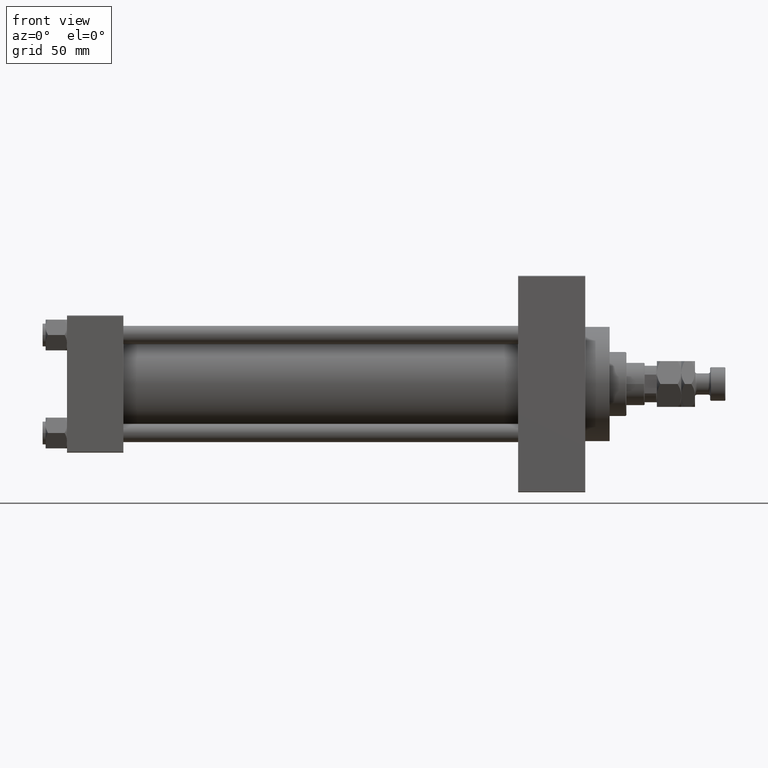
[diagram: clean part render]
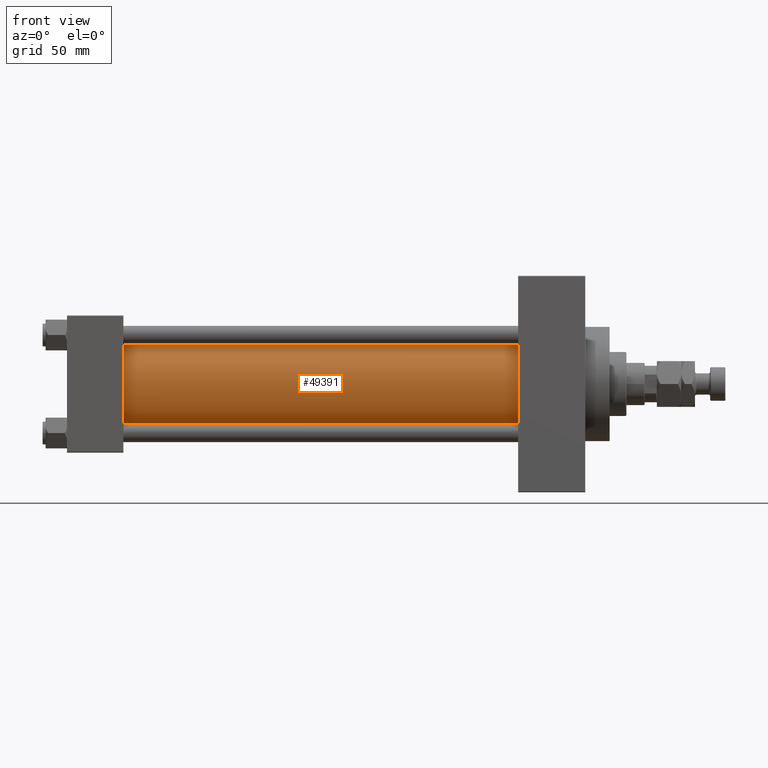
[diagram: same view with one face highlighted and labeled with its STEP entity id]
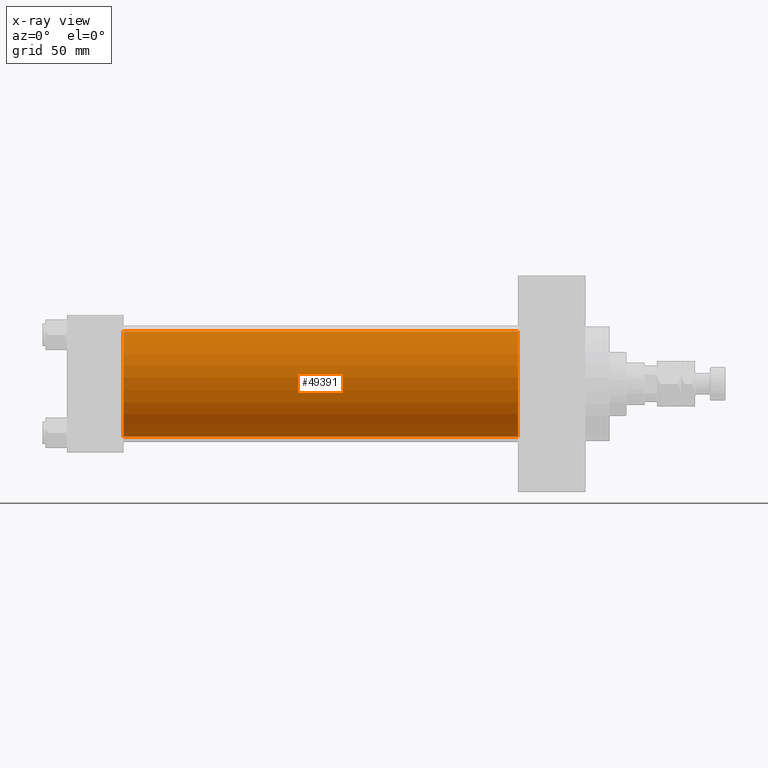
[diagram: x-ray of the same camera — body ghosted, the highlighted face saturated]
A machine part, front view. The second image highlights one B-rep face of the part: STEP entity #49391.
The next image is the same camera in x-ray: the body ghosted, the highlighted face saturated — about 0% of this face is hidden behind the body in this view.
In plain terms, the highlighted cylindrical surface (partial cylindrical patch) has radius 34.5 mm, axis along (-1, -0, -0).
Its self-contained STEP definition (entity closure, byte-faithful):
#1717 = LINE ( 'NONE', #37778, #48047 ) ;
#1949 = AXIS2_PLACEMENT_3D ( 'NONE', #19477, #38532, #10973 ) ;
#3226 = FACE_OUTER_BOUND ( 'NONE', #12890, .T. ) ;
#4855 = DIRECTION ( 'NONE',  ( 0.000000000000000000, 0.000000000000000000, -1.000000000000000000 ) ) ;
#6219 = EDGE_CURVE ( 'NONE', #40028, #27537, #6895, .T. ) ;
#6895 = LINE ( 'NONE', #18774, #16072 ) ;
#7253 = CARTESIAN_POINT ( 'NONE',  ( 36.99999999999997868, 1.622946243093158675E-15, -34.50000000000000000 ) ) ;
#8463 = CARTESIAN_POINT ( 'NONE',  ( 296.0000000000000000, -2.602085213965210642E-15, 0.000000000000000000 ) ) ;
#10195 = CARTESIAN_POINT ( 'NONE',  ( 296.0000000000000000, -2.602085213965210642E-15, 0.000000000000000000 ) ) ;
#10454 = CYLINDRICAL_SURFACE ( 'NONE', #20230, 34.50000000000000000 ) ;
#10973 = DIRECTION ( 'NONE',  ( 0.000000000000000000, 0.000000000000000000, 1.000000000000000000 ) ) ;
#12890 = EDGE_LOOP ( 'NONE', ( #50413, #24088, #28728, #41568 ) ) ;
#16072 = VECTOR ( 'NONE', #34732, 1000.000000000000000 ) ;
#18774 = CARTESIAN_POINT ( 'NONE',  ( 296.0000000000000000, 1.622946243093158675E-15, -34.50000000000000000 ) ) ;
#19203 = DIRECTION ( 'NONE',  ( 0.000000000000000000, 0.000000000000000000, 1.000000000000000000 ) ) ;
#19477 = CARTESIAN_POINT ( 'NONE',  ( 36.99999999999997868, -2.602085213965210642E-15, 0.000000000000000000 ) ) ;
#20230 = AXIS2_PLACEMENT_3D ( 'NONE', #10195, #26174, #19203 ) ;
#24088 = ORIENTED_EDGE ( 'NONE', *, *, #48118, .F. ) ;
#24552 = CARTESIAN_POINT ( 'NONE',  ( 36.99999999999997868, -2.602085213965210642E-15, 34.50000000000000000 ) ) ;
#26174 = DIRECTION ( 'NONE',  ( -1.000000000000000000, -0.000000000000000000, -0.000000000000000000 ) ) ;
#27537 = VERTEX_POINT ( 'NONE', #7253 ) ;
#28728 = ORIENTED_EDGE ( 'NONE', *, *, #36728, .T. ) ;
#29930 = VERTEX_POINT ( 'NONE', #24552 ) ;
#34732 = DIRECTION ( 'NONE',  ( -1.000000000000000000, -0.000000000000000000, -0.000000000000000000 ) ) ;
#36728 = EDGE_CURVE ( 'NONE', #45142, #29930, #1717, .T. ) ;
#36901 = EDGE_CURVE ( 'NONE', #29930, #27537, #45577, .T. ) ;
#37778 = CARTESIAN_POINT ( 'NONE',  ( 296.0000000000000000, -2.602085213965210642E-15, 34.50000000000000000 ) ) ;
#38532 = DIRECTION ( 'NONE',  ( 1.000000000000000000, -0.000000000000000000, 0.000000000000000000 ) ) ;
#40028 = VERTEX_POINT ( 'NONE', #45357 ) ;
#40879 = DIRECTION ( 'NONE',  ( -1.000000000000000000, -0.000000000000000000, -0.000000000000000000 ) ) ;
#41568 = ORIENTED_EDGE ( 'NONE', *, *, #36901, .T. ) ;
#43157 = AXIS2_PLACEMENT_3D ( 'NONE', #8463, #47655, #4855 ) ;
#45142 = VERTEX_POINT ( 'NONE', #46731 ) ;
#45357 = CARTESIAN_POINT ( 'NONE',  ( 296.0000000000000000, 1.622946243093158675E-15, -34.50000000000000000 ) ) ;
#45577 = CIRCLE ( 'NONE', #1949, 34.50000000000000000 ) ;
#45680 = CIRCLE ( 'NONE', #43157, 34.50000000000000000 ) ;
#46731 = CARTESIAN_POINT ( 'NONE',  ( 296.0000000000000000, -2.602085213965210642E-15, 34.50000000000000000 ) ) ;
#47655 = DIRECTION ( 'NONE',  ( 1.000000000000000000, 0.000000000000000000, 0.000000000000000000 ) ) ;
#48047 = VECTOR ( 'NONE', #40879, 1000.000000000000000 ) ;
#48118 = EDGE_CURVE ( 'NONE', #45142, #40028, #45680, .T. ) ;
#49391 = ADVANCED_FACE ( 'NONE', ( #3226 ), #10454, .T. ) ;
#50413 = ORIENTED_EDGE ( 'NONE', *, *, #6219, .F. ) ;